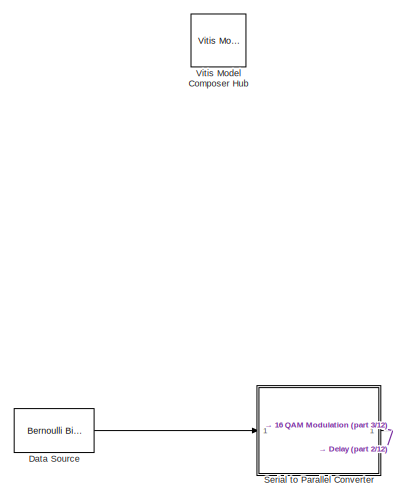
[diagram: root canvas - part 1/12, top left region]
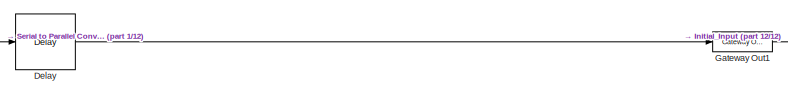
[diagram: root canvas - part 2/12, top center region]
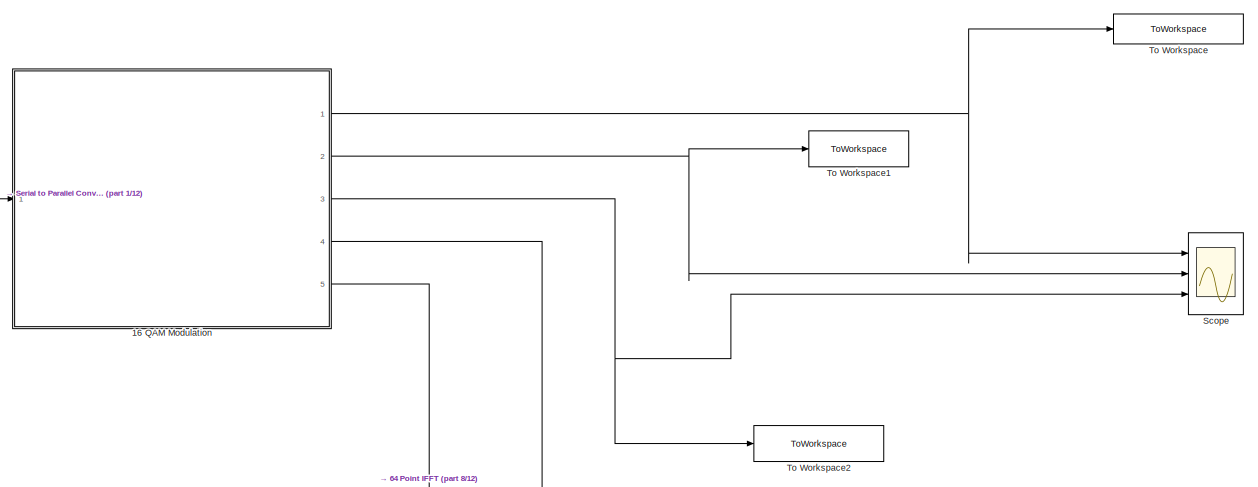
[diagram: root canvas - part 3/12, top left region]
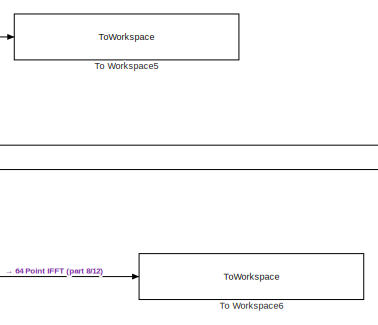
[diagram: root canvas - part 4/12, top center region]
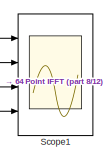
[diagram: root canvas - part 5/12, top center region]
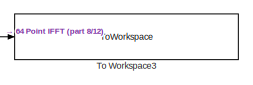
[diagram: root canvas - part 6/12, central region]
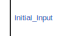
[diagram: root canvas - part 7/12, central region]
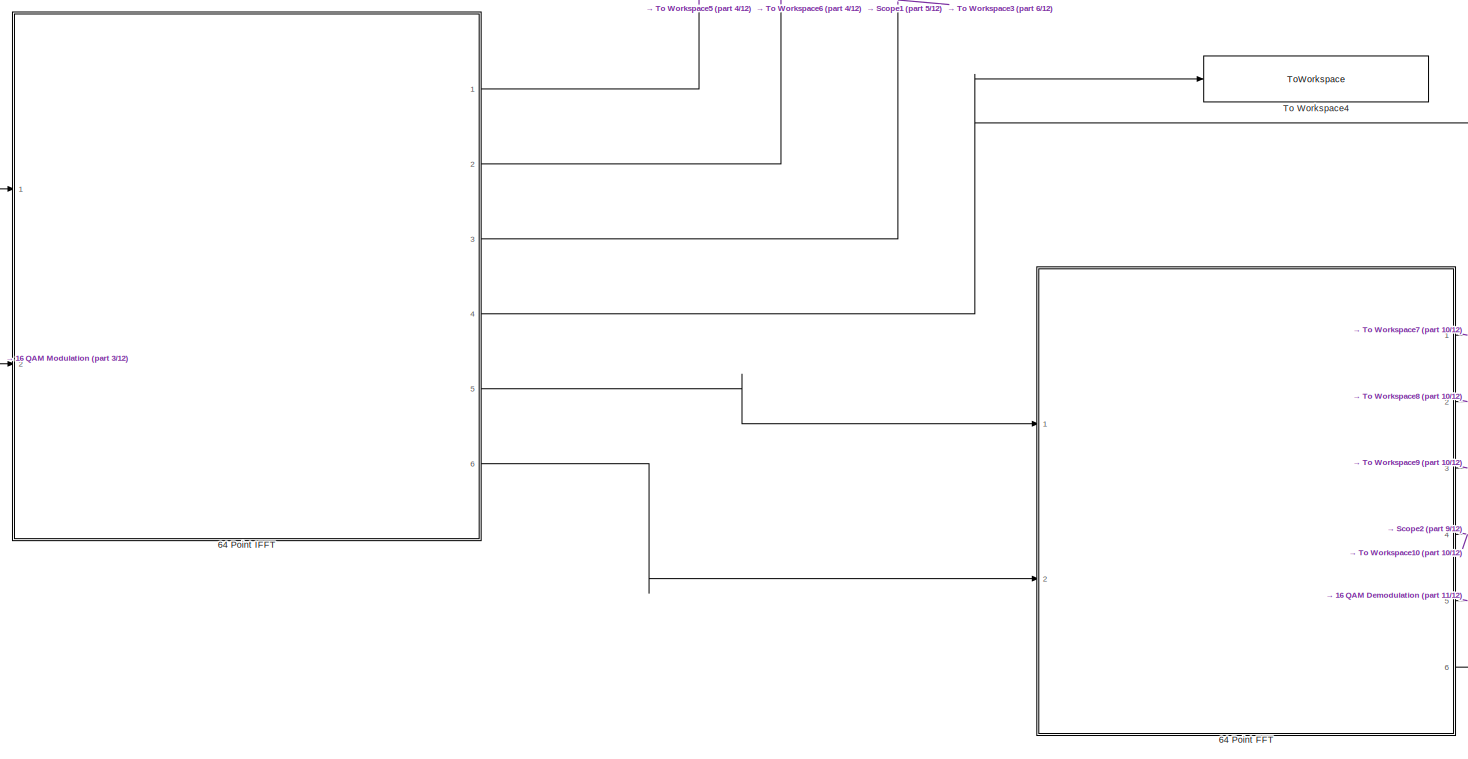
[diagram: root canvas - part 8/12, middle left region]
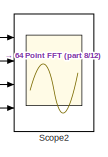
[diagram: root canvas - part 9/12, central region]
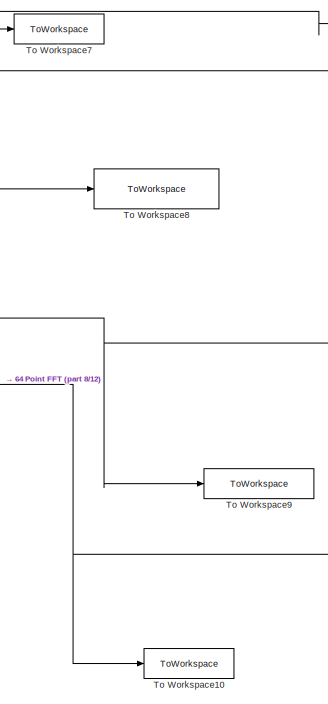
[diagram: root canvas - part 10/12, central region]
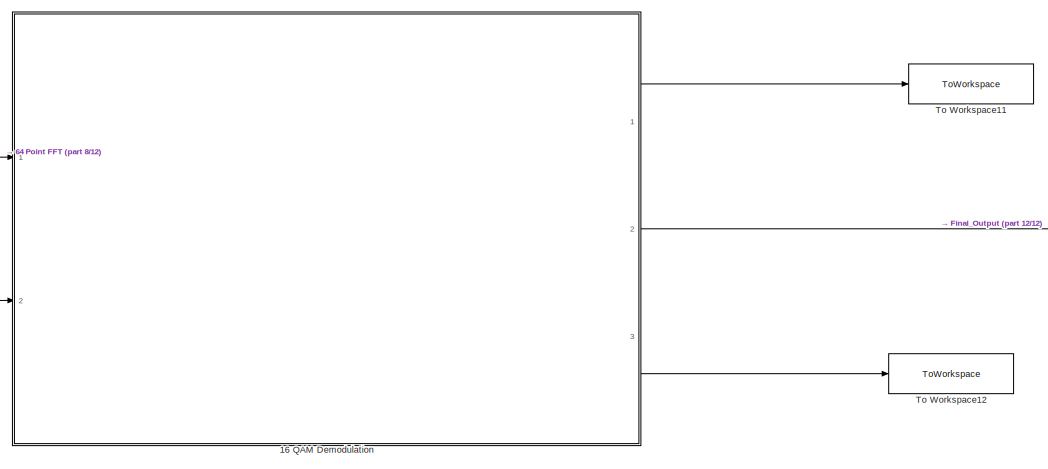
[diagram: root canvas - part 11/12, bottom right region]
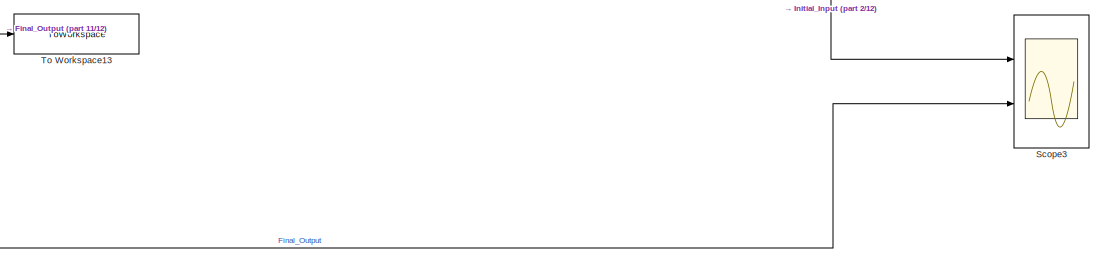
[diagram: root canvas - part 12/12, bottom right region]
MODEL slx_2e12b4caac1b
KIND model
CONFIG AbsTol = auto
CONFIG EnableMultiTasking = off
CONFIG FixedStep = auto
CONFIG MaxStep = auto
CONFIG MinStep = auto
CONFIG RelTol = 1e-3
CONFIG SampleTimeConstraint = Unconstrained
CONFIG SolverName = VariableStepAuto
CONFIG StartTime = 0.0
CONFIG StopTime = 5000
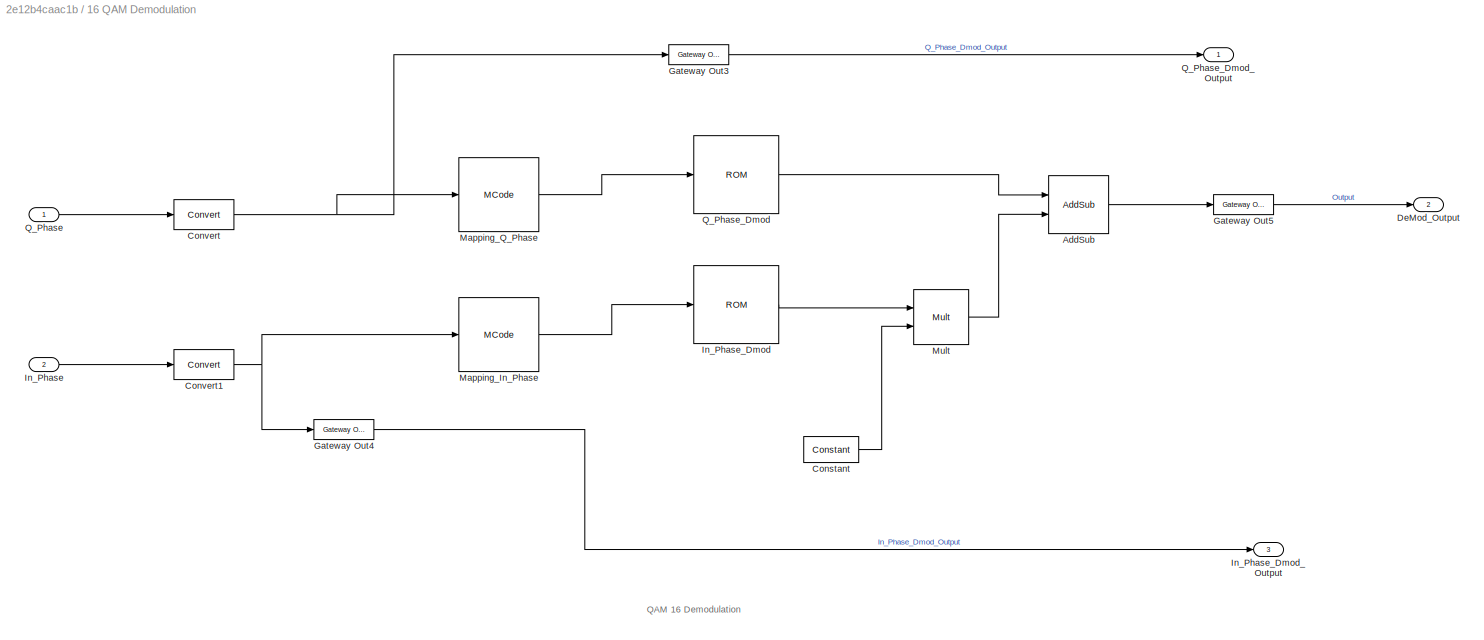
BLOCK [SubSystem] 16 QAM Demodulation
  Ports = [2, 3]
  RequestExecContextInheritance = off
BLOCK [Reference] 16 QAM Demodulation/AddSub  REF=hdlBasic/AddSub
  Ports = [2, 1]
  SourceBlock = hdlBasic/AddSub
  SourceType = Adder/Subtracter Block
BLOCK [Reference] 16 QAM Demodulation/Constant  REF=hdlBasic/Constant
  Ports = [0, 1]
  SourceBlock = hdlBasic/Constant
  SourceType = Constant Block Block
BLOCK [Reference] 16 QAM Demodulation/Convert  REF=hdlBasic/Convert
  Ports = [1, 1]
  SourceBlock = hdlBasic/Convert
  SourceType = Type Converter Block
BLOCK [Reference] 16 QAM Demodulation/Convert1  REF=hdlBasic/Convert
  Ports = [1, 1]
  SourceBlock = hdlBasic/Convert
  SourceType = Type Converter Block
BLOCK [Outport] 16 QAM Demodulation/DeMod_Output
  Port = 2
BLOCK [Reference] 16 QAM Demodulation/Gateway Out3  REF=hdlBasic/Gateway Out
  Ports = [1, 1]
  SourceBlock = hdlBasic/Gateway Out
  SourceType = Gateway Out Block
BLOCK [Reference] 16 QAM Demodulation/Gateway Out4  REF=hdlBasic/Gateway Out
  Ports = [1, 1]
  SourceBlock = hdlBasic/Gateway Out
  SourceType = Gateway Out Block
BLOCK [Reference] 16 QAM Demodulation/Gateway Out5  REF=hdlBasic/Gateway Out
  Ports = [1, 1]
  SourceBlock = hdlBasic/Gateway Out
  SourceType = Gateway Out Block
BLOCK [Inport] 16 QAM Demodulation/In_Phase
  Port = 2
BLOCK [Reference] 16 QAM Demodulation/In_Phase_Dmod  REF=hdlBasic/ROM
  Ports = [1, 1]
  SourceBlock = hdlBasic/ROM
  SourceType = Single Port Read-Only Memory Block
BLOCK [Outport] 16 QAM Demodulation/In_Phase_Dmod_Output
  Port = 3
BLOCK [Reference] 16 QAM Demodulation/Mapping_In_Phase  REF=hdlBasic/MCode
  Ports = [1, 1]
  SourceBlock = hdlBasic/MCode
  SourceType = MCode
BLOCK [Reference] 16 QAM Demodulation/Mapping_Q_Phase  REF=hdlBasic/MCode
  Ports = [1, 1]
  SourceBlock = hdlBasic/MCode
  SourceType = MCode
BLOCK [Reference] 16 QAM Demodulation/Mult  REF=hdlBasic/Mult
  Ports = [2, 1]
  SourceBlock = hdlBasic/Mult
  SourceType = Multiplier Block
BLOCK [Inport] 16 QAM Demodulation/Q_Phase
BLOCK [Reference] 16 QAM Demodulation/Q_Phase_Dmod  REF=hdlBasic/ROM
  Ports = [1, 1]
  SourceBlock = hdlBasic/ROM
  SourceType = Single Port Read-Only Memory Block
BLOCK [Outport] 16 QAM Demodulation/Q_Phase_Dmod_Output
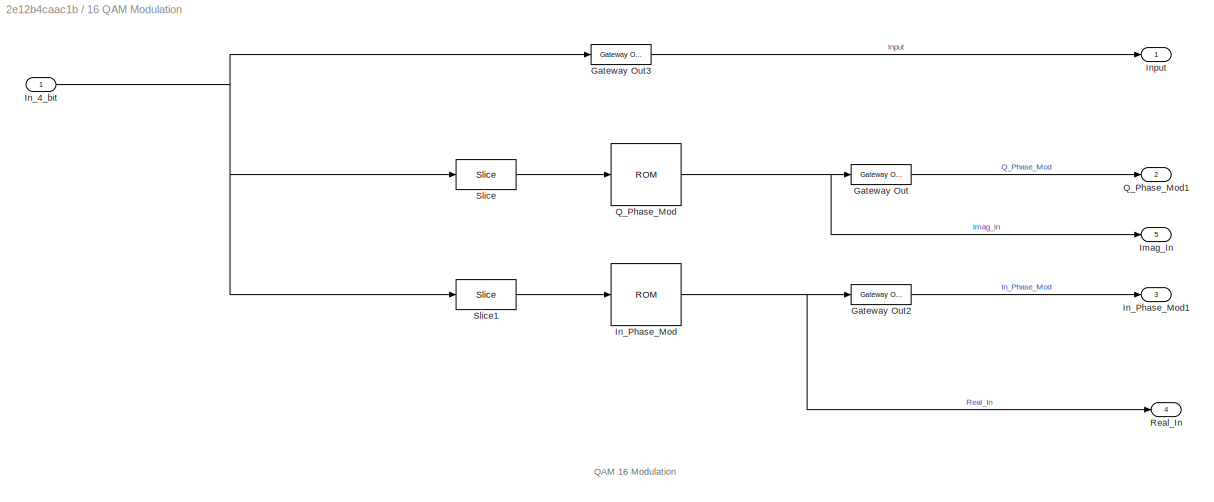
BLOCK [SubSystem] 16 QAM Modulation
  Ports = [1, 5]
  RequestExecContextInheritance = off
BLOCK [Reference] 16 QAM Modulation/Gateway Out  REF=hdlBasic/Gateway Out
  Ports = [1, 1]
  SourceBlock = hdlBasic/Gateway Out
  SourceType = Gateway Out Block
BLOCK [Reference] 16 QAM Modulation/Gateway Out2  REF=hdlBasic/Gateway Out
  Ports = [1, 1]
  SourceBlock = hdlBasic/Gateway Out
  SourceType = Gateway Out Block
BLOCK [Reference] 16 QAM Modulation/Gateway Out3  REF=hdlBasic/Gateway Out
  Ports = [1, 1]
  SourceBlock = hdlBasic/Gateway Out
  SourceType = Gateway Out Block
BLOCK [Outport] 16 QAM Modulation/Imag_In
  Port = 5
BLOCK [Inport] 16 QAM Modulation/In_4_bit
BLOCK [Reference] 16 QAM Modulation/In_Phase_Mod  REF=hdlBasic/ROM
  Ports = [1, 1]
  SourceBlock = hdlBasic/ROM
  SourceType = Single Port Read-Only Memory Block
BLOCK [Outport] 16 QAM Modulation/In_Phase_Mod1
  Port = 3
BLOCK [Outport] 16 QAM Modulation/Input
BLOCK [Reference] 16 QAM Modulation/Q_Phase_Mod  REF=hdlBasic/ROM
  Ports = [1, 1]
  SourceBlock = hdlBasic/ROM
  SourceType = Single Port Read-Only Memory Block
BLOCK [Outport] 16 QAM Modulation/Q_Phase_Mod1
  Port = 2
BLOCK [Outport] 16 QAM Modulation/Real_In
  Port = 4
BLOCK [Reference] 16 QAM Modulation/Slice  REF=hdlBasic/Slice
  Ports = [1, 1]
  SourceBlock = hdlBasic/Slice
  SourceType = Bit Slice Extractor Block
BLOCK [Reference] 16 QAM Modulation/Slice1  REF=hdlBasic/Slice
  Ports = [1, 1]
  SourceBlock = hdlBasic/Slice
  SourceType = Bit Slice Extractor Block
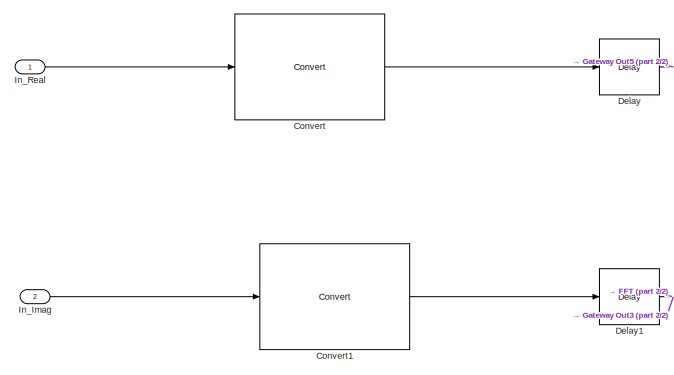
[diagram: 64 Point FFT - part 1/2, middle left region]
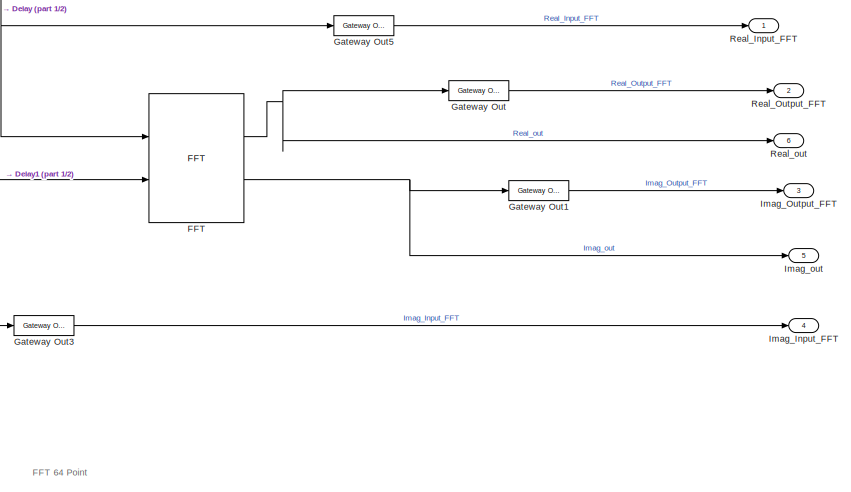
[diagram: 64 Point FFT - part 2/2, right side, full height]
BLOCK [SubSystem] 64 Point FFT
  Ports = [2, 6]
  RequestExecContextInheritance = off
BLOCK [Reference] 64 Point FFT/Convert  REF=hdlBasic/Convert
  Ports = [1, 1]
  SourceBlock = hdlBasic/Convert
  SourceType = Type Converter Block
BLOCK [Reference] 64 Point FFT/Convert1  REF=hdlBasic/Convert
  Ports = [1, 1]
  SourceBlock = hdlBasic/Convert
  SourceType = Type Converter Block
BLOCK [Reference] 64 Point FFT/Delay  REF=hdlBasic/Delay
  Ports = [1, 1]
  SourceBlock = hdlBasic/Delay
  SourceType = Delay Block
BLOCK [Reference] 64 Point FFT/Delay1  REF=hdlBasic/Delay
  Ports = [1, 1]
  SourceBlock = hdlBasic/Delay
  SourceType = Delay Block
BLOCK [Reference] 64 Point FFT/FFT  REF=hdlBasic/FFT
  Ports = [2, 2]
  SourceBlock = hdlBasic/FFT
  SourceType = Forward Fast Fourier Transform Block
BLOCK [Reference] 64 Point FFT/Gateway Out  REF=hdlBasic/Gateway Out
  Ports = [1, 1]
  SourceBlock = hdlBasic/Gateway Out
  SourceType = Gateway Out Block
BLOCK [Reference] 64 Point FFT/Gateway Out1  REF=hdlBasic/Gateway Out
  Ports = [1, 1]
  SourceBlock = hdlBasic/Gateway Out
  SourceType = Gateway Out Block
BLOCK [Reference] 64 Point FFT/Gateway Out3  REF=hdlBasic/Gateway Out
  Ports = [1, 1]
  SourceBlock = hdlBasic/Gateway Out
  SourceType = Gateway Out Block
BLOCK [Reference] 64 Point FFT/Gateway Out5  REF=hdlBasic/Gateway Out
  Ports = [1, 1]
  SourceBlock = hdlBasic/Gateway Out
  SourceType = Gateway Out Block
BLOCK [Outport] 64 Point FFT/Imag_Input_FFT
  Port = 4
BLOCK [Outport] 64 Point FFT/Imag_Output_FFT
  Port = 3
BLOCK [Outport] 64 Point FFT/Imag_out
  Port = 5
BLOCK [Inport] 64 Point FFT/In_Imag
  Port = 2
BLOCK [Inport] 64 Point FFT/In_Real
BLOCK [Outport] 64 Point FFT/Real_Input_FFT
BLOCK [Outport] 64 Point FFT/Real_Output_FFT
  Port = 2
BLOCK [Outport] 64 Point FFT/Real_out
  Port = 6
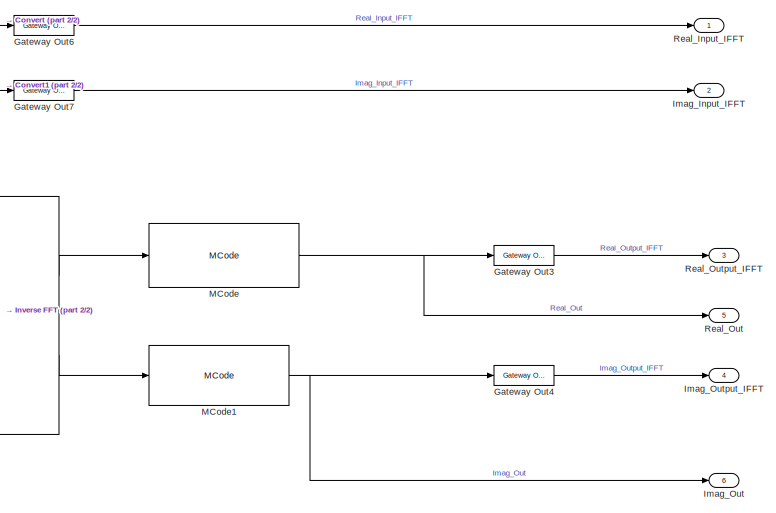
[diagram: 64 Point IFFT - part 1/2, right side, full height]
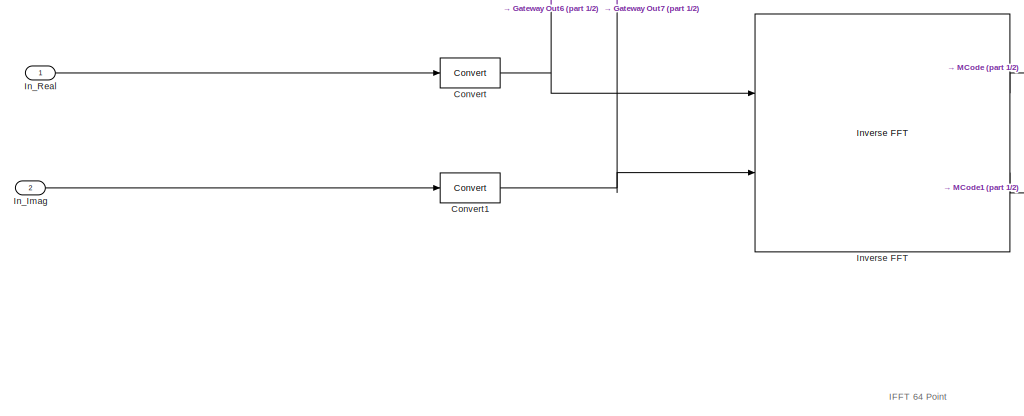
[diagram: 64 Point IFFT - part 2/2, middle left region]
BLOCK [SubSystem] 64 Point IFFT
  Ports = [2, 6]
  RequestExecContextInheritance = off
BLOCK [Reference] 64 Point IFFT/Convert  REF=hdlBasic/Convert
  Ports = [1, 1]
  SourceBlock = hdlBasic/Convert
  SourceType = Type Converter Block
BLOCK [Reference] 64 Point IFFT/Convert1  REF=hdlBasic/Convert
  Ports = [1, 1]
  SourceBlock = hdlBasic/Convert
  SourceType = Type Converter Block
BLOCK [Reference] 64 Point IFFT/Gateway Out3  REF=hdlBasic/Gateway Out
  Ports = [1, 1]
  SourceBlock = hdlBasic/Gateway Out
  SourceType = Gateway Out Block
BLOCK [Reference] 64 Point IFFT/Gateway Out4  REF=hdlBasic/Gateway Out
  Ports = [1, 1]
  SourceBlock = hdlBasic/Gateway Out
  SourceType = Gateway Out Block
BLOCK [Reference] 64 Point IFFT/Gateway Out6  REF=hdlBasic/Gateway Out
  Ports = [1, 1]
  SourceBlock = hdlBasic/Gateway Out
  SourceType = Gateway Out Block
BLOCK [Reference] 64 Point IFFT/Gateway Out7  REF=hdlBasic/Gateway Out
  Ports = [1, 1]
  SourceBlock = hdlBasic/Gateway Out
  SourceType = Gateway Out Block
BLOCK [Outport] 64 Point IFFT/Imag_Input_IFFT
  Port = 2
BLOCK [Outport] 64 Point IFFT/Imag_Out
  Port = 6
BLOCK [Outport] 64 Point IFFT/Imag_Output_IFFT
  Port = 4
BLOCK [Inport] 64 Point IFFT/In_Imag
  Port = 2
BLOCK [Inport] 64 Point IFFT/In_Real
BLOCK [Reference] 64 Point IFFT/Inverse FFT  REF=hdlBasic/Inverse FFT
  Ports = [2, 2]
  SourceBlock = hdlBasic/Inverse FFT
  SourceType = Inverse Fast Fourier Transform Block
BLOCK [Reference] 64 Point IFFT/MCode  REF=hdlBasic/MCode
  Ports = [1, 1]
  SourceBlock = hdlBasic/MCode
  SourceType = MCode
BLOCK [Reference] 64 Point IFFT/MCode1  REF=hdlBasic/MCode
  Ports = [1, 1]
  SourceBlock = hdlBasic/MCode
  SourceType = MCode
BLOCK [Outport] 64 Point IFFT/Real_Input_IFFT
BLOCK [Outport] 64 Point IFFT/Real_Out
  Port = 5
BLOCK [Outport] 64 Point IFFT/Real_Output_IFFT
  Port = 3
BLOCK [Reference] Data Source  REF=commrandsrc3/Bernoulli Binary
Generator
  Ports = [0, 1]
  SourceBlock = commrandsrc3/Bernoulli Binary\nGenerator
  SourceProductBaseCode = CM
  SourceType = Bernoulli Binary Generator
BLOCK [Reference] Delay  REF=hdlBasic/Delay
  Ports = [1, 1]
  SourceBlock = hdlBasic/Delay
  SourceType = Delay Block
BLOCK [Reference] Gateway Out1  REF=hdlBasic/Gateway Out
  Ports = [1, 1]
  SourceBlock = hdlBasic/Gateway Out
  SourceType = Gateway Out Block
BLOCK [Scope] Scope
  Floating = off
  NumInputPorts = 3
  Ports = [3]
  ScopeSpecificationString = Simulink.scopes.TimeScopeBlockCfg('CurrentConfiguration', extmgr.ConfigurationSet(extmgr.Configuration('Core','General UI',true),extmgr.Configuration('Core','Source UI',true),extmgr.Configuration('Sources','WiredSimulink',true,'DataLoggingVariableName','ScopeData1'),extmgr.Configuration('Visuals','Time Domain',true,'SerializedDisplays',{struct('MinYLimReal','-1.875','MaxYLimReal','16.875','YLabelR...<+2143ch>
BLOCK [Scope] Scope1
  Floating = off
  NumInputPorts = 4
  Ports = [4]
  ScopeSpecificationString = Simulink.scopes.TimeScopeBlockCfg('CurrentConfiguration', extmgr.ConfigurationSet(extmgr.Configuration('Core','General UI',true),extmgr.Configuration('Core','Source UI',true),extmgr.Configuration('Sources','WiredSimulink',true,'DataLoggingVariableName','ScopeData2'),extmgr.Configuration('Visuals','Time Domain',true,'SerializedDisplays',{struct('MinYLimReal','-3.75','MaxYLimReal','3.75','YLabelReal...<+3488ch>
BLOCK [Scope] Scope2
  Floating = off
  NumInputPorts = 4
  Ports = [4]
  ScopeSpecificationString = Simulink.scopes.TimeScopeBlockCfg('CurrentConfiguration', extmgr.ConfigurationSet(extmgr.Configuration('Core','General UI',true),extmgr.Configuration('Core','Source UI',true),extmgr.Configuration('Sources','WiredSimulink',true,'DataLoggingVariableName','ScopeData3'),extmgr.Configuration('Visuals','Time Domain',true,'SerializedDisplays',{struct('MinYLimReal','-2.02846','MaxYLimReal','1.61427','YLab...<+3463ch>
BLOCK [Scope] Scope3
  Floating = off
  NumInputPorts = 2
  Ports = [2]
  ScopeSpecificationString = Simulink.scopes.TimeScopeBlockCfg('CurrentConfiguration', extmgr.ConfigurationSet(extmgr.Configuration('Core','General UI',true),extmgr.Configuration('Core','Source UI',true),extmgr.Configuration('Sources','WiredSimulink',true),extmgr.Configuration('Visuals','Time Domain',true,'SerializedDisplays',{struct('MinYLimReal','-1.875','MaxYLimReal','16.875','YLabelReal','','MinYLimMag','0.00000','MaxYLim...<+2072ch>
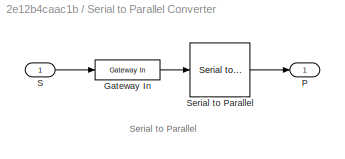
BLOCK [SubSystem] Serial to Parallel Converter
  Ports = [1, 1]
  RequestExecContextInheritance = off
BLOCK [Reference] Serial to Parallel Converter/Gateway In  REF=hdlBasic/Gateway In
  Ports = [1, 1]
  SourceBlock = hdlBasic/Gateway In
  SourceType = Gateway In Block
BLOCK [Outport] Serial to Parallel Converter/P
BLOCK [Inport] Serial to Parallel Converter/S
BLOCK [Reference] Serial to Parallel Converter/Serial to Parallel  REF=hdlBasic/Serial to Parallel
  Ports = [1, 1]
  SourceBlock = hdlBasic/Serial to Parallel
  SourceType = Serial to Parallel Converter Block
BLOCK [ToWorkspace] To Workspace
  FixptAsFi = on
  MaxDataPoints = inf
  Ports = [1]
  SampleTime = -1
  SaveFormat = Timeseries
  VariableName = Input
BLOCK [ToWorkspace] To Workspace1
  FixptAsFi = on
  MaxDataPoints = inf
  Ports = [1]
  SampleTime = -1
  SaveFormat = Timeseries
  VariableName = Q_Phase_Mod
BLOCK [ToWorkspace] To Workspace10
  FixptAsFi = on
  MaxDataPoints = inf
  Ports = [1]
  SampleTime = -1
  SaveFormat = Timeseries
  VariableName = Imag_Input_FFT
BLOCK [ToWorkspace] To Workspace11
  FixptAsFi = on
  MaxDataPoints = inf
  Ports = [1]
  SampleTime = -1
  SaveFormat = Timeseries
  VariableName = Q_Phase_Demod
BLOCK [ToWorkspace] To Workspace12
  FixptAsFi = on
  MaxDataPoints = inf
  Ports = [1]
  SampleTime = -1
  SaveFormat = Timeseries
  VariableName = In_Phase_Demod
BLOCK [ToWorkspace] To Workspace13
  FixptAsFi = on
  MaxDataPoints = inf
  Ports = [1]
  SampleTime = -1
  SaveFormat = Timeseries
  VariableName = Output_after_demodulation
BLOCK [ToWorkspace] To Workspace2
  FixptAsFi = on
  MaxDataPoints = inf
  Ports = [1]
  SampleTime = -1
  SaveFormat = Timeseries
  VariableName = In_Phase_Mod
BLOCK [ToWorkspace] To Workspace3
  FixptAsFi = on
  MaxDataPoints = inf
  Ports = [1]
  SampleTime = -1
  SaveFormat = Timeseries
  VariableName = Real_Output_IFFT_8_Point
BLOCK [ToWorkspace] To Workspace4
  FixptAsFi = on
  MaxDataPoints = inf
  Ports = [1]
  SampleTime = -1
  SaveFormat = Timeseries
  VariableName = Imag_Output_IFFT_8_Point
BLOCK [ToWorkspace] To Workspace5
  FixptAsFi = on
  MaxDataPoints = inf
  Ports = [1]
  SampleTime = -1
  SaveFormat = Timeseries
  VariableName = Real_Input_IFFT
BLOCK [ToWorkspace] To Workspace6
  FixptAsFi = on
  MaxDataPoints = inf
  Ports = [1]
  SampleTime = -1
  SaveFormat = Timeseries
  VariableName = Imag_Input_IFFT
BLOCK [ToWorkspace] To Workspace7
  FixptAsFi = on
  MaxDataPoints = inf
  Ports = [1]
  SampleTime = -1
  SaveFormat = Timeseries
  VariableName = Real_Input_FFT
BLOCK [ToWorkspace] To Workspace8
  FixptAsFi = on
  MaxDataPoints = inf
  Ports = [1]
  SampleTime = -1
  SaveFormat = Timeseries
  VariableName = Real_output_FFT
BLOCK [ToWorkspace] To Workspace9
  FixptAsFi = on
  MaxDataPoints = inf
  Ports = [1]
  SampleTime = -1
  SaveFormat = Timeseries
  VariableName = Imag_output_FFT
BLOCK [Reference] Vitis Model Composer Hub  REF=vmcUtilities/Vitis Model Composer Hub
  Ports = []
  SourceBlock = vmcUtilities/Vitis Model Composer Hub
  SourceType = Implementation
  Tag = genX
  UserDataPersistent = on
ANNOTATION 16 QAM Demodulation: QAM 16 Demodulation
ANNOTATION 16 QAM Modulation: QAM 16 Modulation
ANNOTATION 64 Point FFT: FFT 64 Point
ANNOTATION 64 Point IFFT: IFFT 64 Point
ANNOTATION Serial to Parallel Converter: Serial to Parallel
LINE 16 QAM Demodulation/AddSub:1 -> 16 QAM Demodulation/Gateway Out5:1
LINE 16 QAM Demodulation/Constant:1 -> 16 QAM Demodulation/Mult:2
NET 16 QAM Demodulation/Convert1:1 -> 16 QAM Demodulation/Gateway Out4:1, 16 QAM Demodulation/Mapping_In_Phase:1
NET 16 QAM Demodulation/Convert:1 -> 16 QAM Demodulation/Gateway Out3:1, 16 QAM Demodulation/Mapping_Q_Phase:1
LINE 16 QAM Demodulation/Gateway Out3:1 -> 16 QAM Demodulation/Q_Phase_Dmod_Output:1
LINE 16 QAM Demodulation/Gateway Out4:1 -> 16 QAM Demodulation/In_Phase_Dmod_Output:1
LINE 16 QAM Demodulation/Gateway Out5:1 -> 16 QAM Demodulation/DeMod_Output:1
LINE 16 QAM Demodulation/In_Phase:1 -> 16 QAM Demodulation/Convert1:1
LINE 16 QAM Demodulation/In_Phase_Dmod:1 -> 16 QAM Demodulation/Mult:1
LINE 16 QAM Demodulation/Mapping_In_Phase:1 -> 16 QAM Demodulation/In_Phase_Dmod:1
LINE 16 QAM Demodulation/Mapping_Q_Phase:1 -> 16 QAM Demodulation/Q_Phase_Dmod:1
LINE 16 QAM Demodulation/Mult:1 -> 16 QAM Demodulation/AddSub:2
LINE 16 QAM Demodulation/Q_Phase:1 -> 16 QAM Demodulation/Convert:1
LINE 16 QAM Demodulation/Q_Phase_Dmod:1 -> 16 QAM Demodulation/AddSub:1
LINE 16 QAM Demodulation:1 -> To Workspace11:1
NET 16 QAM Demodulation:2 -> Scope3:2, To Workspace13:1
LINE 16 QAM Demodulation:3 -> To Workspace12:1
LINE 16 QAM Modulation/Gateway Out2:1 -> 16 QAM Modulation/In_Phase_Mod1:1
LINE 16 QAM Modulation/Gateway Out3:1 -> 16 QAM Modulation/Input:1
LINE 16 QAM Modulation/Gateway Out:1 -> 16 QAM Modulation/Q_Phase_Mod1:1
NET 16 QAM Modulation/In_4_bit:1 -> 16 QAM Modulation/Gateway Out3:1, 16 QAM Modulation/Slice1:1, 16 QAM Modulation/Slice:1
NET 16 QAM Modulation/In_Phase_Mod:1 -> 16 QAM Modulation/Gateway Out2:1, 16 QAM Modulation/Real_In:1
NET 16 QAM Modulation/Q_Phase_Mod:1 -> 16 QAM Modulation/Gateway Out:1, 16 QAM Modulation/Imag_In:1
LINE 16 QAM Modulation/Slice1:1 -> 16 QAM Modulation/In_Phase_Mod:1
LINE 16 QAM Modulation/Slice:1 -> 16 QAM Modulation/Q_Phase_Mod:1
NET 16 QAM Modulation:1 -> Scope:1, To Workspace:1
NET 16 QAM Modulation:2 -> Scope:2, To Workspace1:1
NET 16 QAM Modulation:3 -> Scope:3, To Workspace2:1
LINE 16 QAM Modulation:4 -> 64 Point IFFT:1
LINE 16 QAM Modulation:5 -> 64 Point IFFT:2
LINE 64 Point FFT/Convert1:1 -> 64 Point FFT/Delay1:1
LINE 64 Point FFT/Convert:1 -> 64 Point FFT/Delay:1
NET 64 Point FFT/Delay1:1 -> 64 Point FFT/FFT:2, 64 Point FFT/Gateway Out3:1
NET 64 Point FFT/Delay:1 -> 64 Point FFT/FFT:1, 64 Point FFT/Gateway Out5:1
NET 64 Point FFT/FFT:1 -> 64 Point FFT/Gateway Out:1, 64 Point FFT/Real_out:1
NET 64 Point FFT/FFT:2 -> 64 Point FFT/Gateway Out1:1, 64 Point FFT/Imag_out:1
LINE 64 Point FFT/Gateway Out1:1 -> 64 Point FFT/Imag_Output_FFT:1
LINE 64 Point FFT/Gateway Out3:1 -> 64 Point FFT/Imag_Input_FFT:1
LINE 64 Point FFT/Gateway Out5:1 -> 64 Point FFT/Real_Input_FFT:1
LINE 64 Point FFT/Gateway Out:1 -> 64 Point FFT/Real_Output_FFT:1
LINE 64 Point FFT/In_Imag:1 -> 64 Point FFT/Convert1:1
LINE 64 Point FFT/In_Real:1 -> 64 Point FFT/Convert:1
NET 64 Point FFT:1 -> Scope2:1, To Workspace7:1
NET 64 Point FFT:2 -> Scope2:3, To Workspace8:1
NET 64 Point FFT:3 -> Scope2:4, To Workspace9:1
NET 64 Point FFT:4 -> Scope2:2, To Workspace10:1
LINE 64 Point FFT:5 -> 16 QAM Demodulation:1
LINE 64 Point FFT:6 -> 16 QAM Demodulation:2
NET 64 Point IFFT/Convert1:1 -> 64 Point IFFT/Gateway Out7:1, 64 Point IFFT/Inverse FFT:2
NET 64 Point IFFT/Convert:1 -> 64 Point IFFT/Gateway Out6:1, 64 Point IFFT/Inverse FFT:1
LINE 64 Point IFFT/Gateway Out3:1 -> 64 Point IFFT/Real_Output_IFFT:1
LINE 64 Point IFFT/Gateway Out4:1 -> 64 Point IFFT/Imag_Output_IFFT:1
LINE 64 Point IFFT/Gateway Out6:1 -> 64 Point IFFT/Real_Input_IFFT:1
LINE 64 Point IFFT/Gateway Out7:1 -> 64 Point IFFT/Imag_Input_IFFT:1
LINE 64 Point IFFT/In_Imag:1 -> 64 Point IFFT/Convert1:1
LINE 64 Point IFFT/In_Real:1 -> 64 Point IFFT/Convert:1
LINE 64 Point IFFT/Inverse FFT:1 -> 64 Point IFFT/MCode:1
LINE 64 Point IFFT/Inverse FFT:2 -> 64 Point IFFT/MCode1:1
NET 64 Point IFFT/MCode1:1 -> 64 Point IFFT/Gateway Out4:1, 64 Point IFFT/Imag_Out:1
NET 64 Point IFFT/MCode:1 -> 64 Point IFFT/Gateway Out3:1, 64 Point IFFT/Real_Out:1
NET 64 Point IFFT:1 -> Scope1:1, To Workspace5:1
NET 64 Point IFFT:2 -> Scope1:2, To Workspace6:1
NET 64 Point IFFT:3 -> Scope1:3, To Workspace3:1
NET 64 Point IFFT:4 -> Scope1:4, To Workspace4:1
LINE 64 Point IFFT:5 -> 64 Point FFT:1
LINE 64 Point IFFT:6 -> 64 Point FFT:2
LINE Data Source:1 -> Serial to Parallel Converter:1
LINE Delay:1 -> Gateway Out1:1
LINE Gateway Out1:1 -> Scope3:1
LINE Serial to Parallel Converter/Gateway In:1 -> Serial to Parallel Converter/Serial to Parallel:1
LINE Serial to Parallel Converter/S:1 -> Serial to Parallel Converter/Gateway In:1
LINE Serial to Parallel Converter/Serial to Parallel:1 -> Serial to Parallel Converter/P:1
NET Serial to Parallel Converter:1 -> 16 QAM Modulation:1, Delay:1
note: NET lines group one-source signal fan-out (src -> all destinations, sorted); 1:1 wires keep LINE
